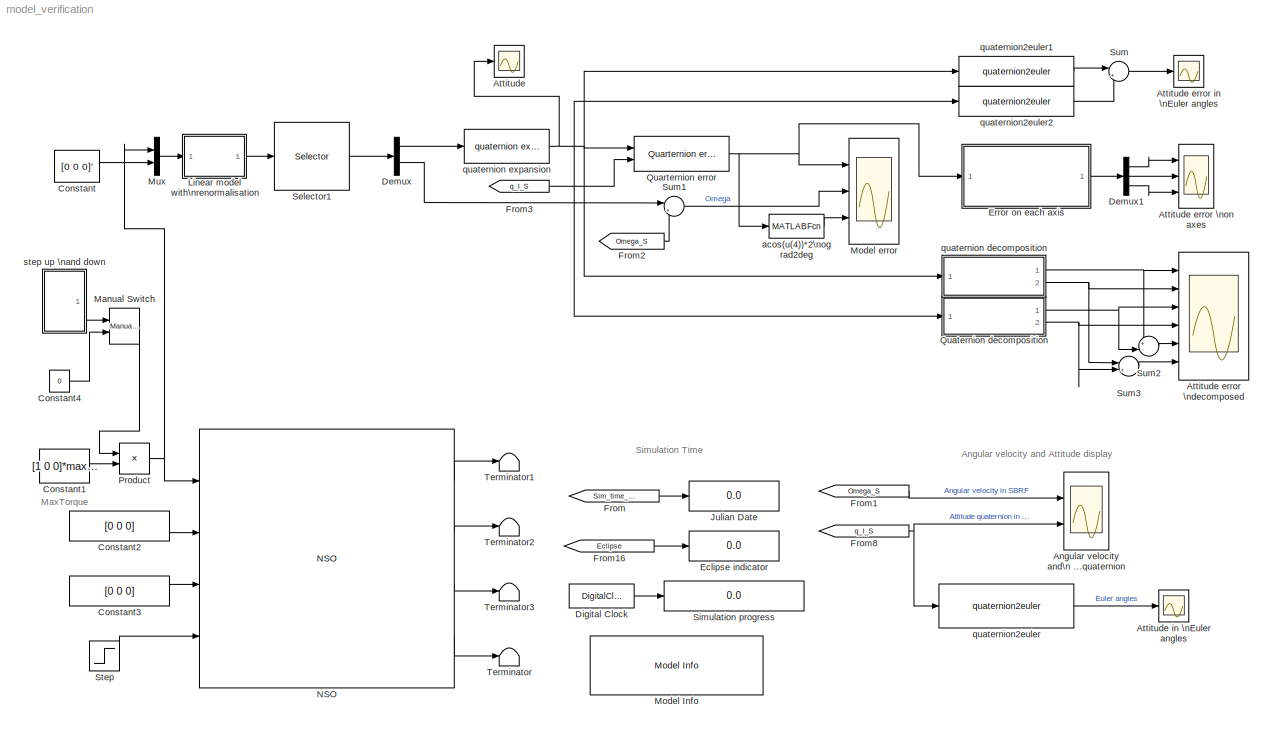
MODEL model_verification
KIND model
CONFIG InitFcn = model_veri
CONFIG PreLoadFcn = \n
CONFIG StartFcn = \n\n
BLOCK [Scope] Angular velocity and\n attitude quaternion
  DataFormat = StructureWithTime
  Floating = off
  LimitDataPoints = off
  NumInputPorts = 2
  Ports = [2]
  SampleTime = 0
  YMax = 0~1
  YMin = -1.25e-008~0
  ZoomMode = yonly
BLOCK [Scope] Attitude
  DataFormat = StructureWithTime
  Floating = off
  LimitDataPoints = off
  NumInputPorts = 1
  Ports = [1]
  SampleTime = 0
  SaveName = ScopeData2
  YMax = 3.5
  YMin = -3.5
BLOCK [Scope] Attitude error \ndecomposed
  DataFormat = StructureWithTime
  Floating = off
  LimitDataPoints = off
  NumInputPorts = 6
  Ports = [6]
  SampleTime = 0
  SaveName = ScopeData4
  YMax = 0.1~0.00125~1~0.00125~0.01~2.5e-009
  YMin = -1~0~-1~0~-0.001~-5e-010
  ZoomMode = yonly
BLOCK [Scope] Attitude error \non axes
  DataFormat = StructureWithTime
  Floating = off
  LimitDataPoints = off
  NumInputPorts = 3
  Ports = [3]
  SampleTime = 0
  SaveName = ScopeData5
  YMax = 3.5~5~5
  YMin = -3.5~-5~-5
  ZoomMode = yonly
BLOCK [Scope] Attitude error in \nEuler angles
  DataFormat = StructureWithTime
  Floating = off
  LimitDataPoints = off
  NumInputPorts = 1
  Ports = [1]
  SampleTime = 0
  SaveName = ScopeData3
  YMax = 3.5
  YMin = -3.5
BLOCK [Scope] Attitude in \nEuler angles
  DataFormat = StructureWithTime
  Floating = off
  LimitDataPoints = off
  NumInputPorts = 1
  Ports = [1]
  SampleTime = 0
  SaveName = ScopeData1
  YMax = 3.5
  YMin = -3.5
BLOCK [Constant] Constant
  Value = [0 0 0]'
BLOCK [Constant] Constant1
  Value = [1 0 0]*maxTorque
BLOCK [Constant] Constant2
  Value = [0 0 0]
BLOCK [Constant] Constant3
  Value = [0 0 0]
BLOCK [Constant] Constant4
  Value = 0
BLOCK [Demux] Demux
  DisplayOption = bar
  Outputs = 2
  Ports = [1, 2]
BLOCK [Demux] Demux1
  DisplayOption = bar
  Outputs = 3
  Ports = [1, 3]
BLOCK [DigitalClock] Digital Clock
BLOCK [Display] Eclipse indicator
  Decimation = 1
  Lockdown = off
  Ports = [1]
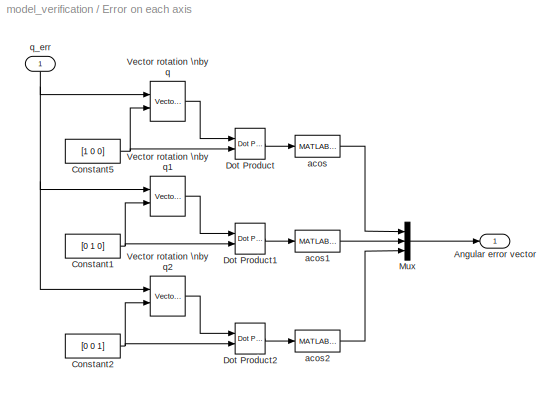
BLOCK [SubSystem] Error on each axis
  MaskHideContents = off
  MinAlgLoopOccurrences = off
  Ports = [1, 1]
  RTWSystemCode = Auto
  TreatAsAtomicUnit = off
BLOCK [Outport] Error on each axis/Angular error vector
  BusOutputAsStruct = off
  IconDisplay = Port number
BLOCK [Constant] Error on each axis/Constant1
  Value = [0 1 0]
BLOCK [Constant] Error on each axis/Constant2
  Value = [0 0 1]
BLOCK [Constant] Error on each axis/Constant5
  Value = [1 0 0]
BLOCK [Reference] Error on each axis/Dot Product  REF=simulink/Math\nOperations/Dot Product
  DoSatur = off
  InputSameDT = on
  LockScale = off
  OutDataType = sfix(16)
  OutScaling = 2^-10
  OutputDataTypeScalingMode = Inherit via internal rule
  Ports = [2, 1]
  RndMeth = Floor
  SourceBlock = simulink/Math\nOperations/Dot Product
  SourceType = Dot Product
BLOCK [Reference] Error on each axis/Dot Product1  REF=simulink/Math\nOperations/Dot Product
  DoSatur = off
  InputSameDT = on
  LockScale = off
  OutDataType = sfix(16)
  OutScaling = 2^-10
  OutputDataTypeScalingMode = Inherit via internal rule
  Ports = [2, 1]
  RndMeth = Floor
  SourceBlock = simulink/Math\nOperations/Dot Product
  SourceType = Dot Product
BLOCK [Reference] Error on each axis/Dot Product2  REF=simulink/Math\nOperations/Dot Product
  DoSatur = off
  InputSameDT = on
  LockScale = off
  OutDataType = sfix(16)
  OutScaling = 2^-10
  OutputDataTypeScalingMode = Inherit via internal rule
  Ports = [2, 1]
  RndMeth = Floor
  SourceBlock = simulink/Math\nOperations/Dot Product
  SourceType = Dot Product
BLOCK [Mux] Error on each axis/Mux
  DisplayOption = bar
  Inputs = 3
  Ports = [3, 1]
BLOCK [Reference] Error on each axis/Vector rotation \nby q  REF=components_lib/Math utilities/Quaternion operations/Vector rotation by q  (lib defined in mdl_419550584dda)
  Ports = [2, 1]
  ShowPortLabels = on
  SourceBlock = components_lib/Math utilities/Quaternion operations/Vector rotation by q
  SourceType = SubSystem
BLOCK [Reference] Error on each axis/Vector rotation \nby q1  REF=components_lib/Math utilities/Quaternion operations/Vector rotation by q  (lib defined in mdl_419550584dda)
  Ports = [2, 1]
  ShowPortLabels = on
  SourceBlock = components_lib/Math utilities/Quaternion operations/Vector rotation by q
  SourceType = SubSystem
BLOCK [Reference] Error on each axis/Vector rotation \nby q2  REF=components_lib/Math utilities/Quaternion operations/Vector rotation by q  (lib defined in mdl_419550584dda)
  Ports = [2, 1]
  ShowPortLabels = on
  SourceBlock = components_lib/Math utilities/Quaternion operations/Vector rotation by q
  SourceType = SubSystem
BLOCK [MATLABFcn] Error on each axis/acos
  MATLABFcn = real(acos(u))/pi*180
BLOCK [MATLABFcn] Error on each axis/acos1
  MATLABFcn = real(acos(u))/pi*180
BLOCK [MATLABFcn] Error on each axis/acos2
  MATLABFcn = real(acos(u))/pi*180
BLOCK [Inport] Error on each axis/q_err
  IconDisplay = Port number
BLOCK [From] From
  CloseFcn = tagdialog Close
  GotoTag = Sim_time_JD
BLOCK [From] From1
  CloseFcn = tagdialog Close
  GotoTag = Omega_S
BLOCK [From] From16
  CloseFcn = tagdialog Close
  GotoTag = Eclipse
BLOCK [From] From2
  CloseFcn = tagdialog Close
  GotoTag = Omega_S
BLOCK [From] From3
  CloseFcn = tagdialog Close
  GotoTag = q_I_S
BLOCK [From] From8
  CloseFcn = tagdialog Close
  GotoTag = q_I_S
BLOCK [Display] Julian Date
  Decimation = 1
  Lockdown = off
  Ports = [1]
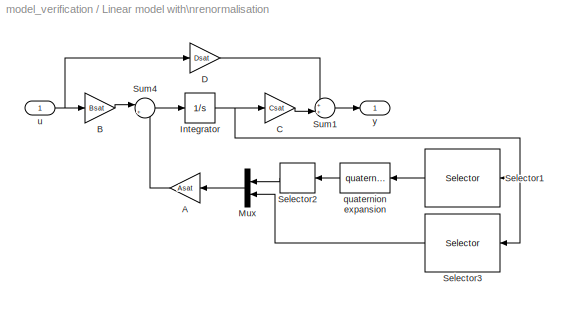
BLOCK [SubSystem] Linear model with\nrenormalisation
  MaskCallbackString = |||||
  MaskDescription = This is a general linear system of a satellite described by \nx_dot = Ax + Bu\ny = Cx + Du\nwhere x = [q_1:3 w L] and u=[N_mt N_mw].\nHowever, in this model the quaternion is expanded and renormalised in every timestep.
  MaskEnableString = on,on,on,on,on,on
  MaskHideContents = off
  MaskIconFrame = on
  MaskIconOpaque = on
  MaskIconRotate = none
  MaskIconUnits = autoscale
  MaskPromptString = A matrix|B matrix|C matrix|D matrix|Initial attitude|Initial angular rate
  MaskStyleString = edit,edit,edit,edit,edit,edit
  MaskTabNameString = ,,,,,
  MaskToolTipString = on,on,on,on,on,on
  MaskTunableValueString = on,on,on,on,on,on
  MaskType = Linear satellite system
  MaskValueString = A_model_ver|B_model_ver|C_model_ver|D_model_ver|[0 0 0 1]|[0.1 0.1 0.1]*0
  MaskVarAliasString = ,,,,,
  MaskVariables = Asat=@1;Bsat=@2;Csat=@3;Dsat=@4;q_init=@5;w_init=@6;
  MaskVisibilityString = on,on,on,on,on,on
  MinAlgLoopOccurrences = off
  Ports = [1, 1]
  RTWSystemCode = Auto
  TreatAsAtomicUnit = off
BLOCK [Gain] Linear model with\nrenormalisation/A
  Gain = Asat
  Multiplication = Matrix(K*u)
  OutDataTypeMode = Inherit via internal rule
  ParameterDataTypeMode = Inherit via internal rule
  SaturateOnIntegerOverflow = off
BLOCK [Gain] Linear model with\nrenormalisation/B
  Gain = Bsat
  Multiplication = Matrix(K*u)
  OutDataTypeMode = Inherit via internal rule
  ParameterDataTypeMode = Inherit via internal rule
  SaturateOnIntegerOverflow = off
BLOCK [Gain] Linear model with\nrenormalisation/C
  Gain = Csat
  Multiplication = Matrix(K*u)
  OutDataTypeMode = Inherit via internal rule
  ParameterDataTypeMode = Inherit via internal rule
  SaturateOnIntegerOverflow = off
BLOCK [Gain] Linear model with\nrenormalisation/D
  Gain = Dsat
  Multiplication = Matrix(K*u)
  OutDataTypeMode = Inherit via internal rule
  ParameterDataTypeMode = Inherit via internal rule
  SaturateOnIntegerOverflow = off
BLOCK [Integrator] Linear model with\nrenormalisation/Integrator
  IgnoreLimit = off
  InitialCondition = [q_init(1:3) w_init 0 0 0]
  Ports = [1, 1]
BLOCK [Mux] Linear model with\nrenormalisation/Mux
  DisplayOption = bar
  Inputs = 2
  Ports = [2, 1]
BLOCK [Selector] Linear model with\nrenormalisation/Selector1
  Elements = [1 2 3]
  InputPortWidth = 9
  Ports = [1, 1]
BLOCK [Selector] Linear model with\nrenormalisation/Selector2
  Elements = [1 2 3]
  InputPortWidth = 4
  Ports = [1, 1]
BLOCK [Selector] Linear model with\nrenormalisation/Selector3
  Elements = [4 5 6 7 8 9]
  InputPortWidth = 9
  Ports = [1, 1]
BLOCK [Sum] Linear model with\nrenormalisation/Sum1
  IconShape = round
  InputSameDT = off
  Inputs = ++|
  OutDataTypeMode = Inherit via internal rule
  Ports = [2, 1]
  SaturateOnIntegerOverflow = off
BLOCK [Sum] Linear model with\nrenormalisation/Sum4
  IconShape = round
  InputSameDT = off
  Inputs = |++
  OutDataTypeMode = Inherit via internal rule
  Ports = [2, 1]
  SaturateOnIntegerOverflow = off
BLOCK [Reference] Linear model with\nrenormalisation/quaternion expansion  REF=components_lib/Math utilities/Quaternion operations/quaternion expansion  (lib defined in mdl_419550584dda)
  Ports = [1, 1]
  ShowPortLabels = on
  SourceBlock = components_lib/Math utilities/Quaternion operations/quaternion expansion
  SourceType = SubSystem
BLOCK [Inport] Linear model with\nrenormalisation/u
  IconDisplay = Port number
BLOCK [Outport] Linear model with\nrenormalisation/y
  BusOutputAsStruct = off
  IconDisplay = Port number
BLOCK [Reference] Manual Switch  REF=simulink/Signal\nRouting/Manual Switch
  Ports = [2, 1]
  ShowPortLabels = on
  SourceBlock = simulink/Signal\nRouting/Manual Switch
  SourceType = Manual Switch
  action = 0
  sw = 1
BLOCK [Reference] Model Info  REF=simulink/Model-Wide\nUtilities/Model Info
  BlockCM = None
  DisplayStringWithTags = Usefull Julian dates:\nsun to eclipse : 2452315.560376\n32 sec. before : 2452315.56\neclipse to sun : 2452315.513363
  Frame = on
  HorizontalTextAlignment = Left
  InitialBlockCM = None
  LeftAlignmentValue = 0.02
  MaskDisplayString = Usefull Julian dates:\\nsun to eclipse : 2452315.560376\\n32 sec. before : 2452315.56\\neclipse to sun : 2452315.513363
  Ports = []
  ShowPortLabels = on
  SourceBlock = simulink/Model-Wide\nUtilities/Model Info
  SourceBlockDiagram = model_verification
  SourceType = CMBlock
  TagMaxNumber = 20
BLOCK [Scope] Model error
  DataFormat = StructureWithTime
  Floating = off
  LimitDataPoints = off
  NumInputPorts = 3
  Ports = [3]
  SampleTime = 0
  SaveName = model_veri_err
  SaveToWorkspace = on
  TimeRange = 8.824896694214885
  YMax = 1~2e-016~0.4935266347021195
  YMin = -1~-1e-016~0
  ZoomMode = xonly
BLOCK [Mux] Mux
  DisplayOption = bar
  Inputs = 2
  Ports = [2, 1]
BLOCK [Reference] NSO  REF=components_lib/NSO  (lib defined in mdl_419550584dda)
  Cd = 2
  Description = AAUSAT-II Model
  Dim = [0.1 0.1 0.3]
  Ports = [4, 4]
  ShowPortLabels = on
  SourceBlock = components_lib/NSO
  Tag = AAUSAT-II Model
  alb_emu_enabled = off
  enable_dist = off
  enable_sensor_emulation = off
  inertia_c = [25 25 5]/1e3
  inertia_d = [42.3 42.3 28.4]/1e3
  init_jd = 2452315.56
  mass_sc = 3
  q_init_s_i = [0 0 0 1]
  q_s_c = [0 0 0 1]
  r_com_s = [0.05 0.05 0.15]
  r_com_s_deployed = [0.05 0.05 0.125]
  rho = 9.25e-13
  sat_temp_start = 0
  w_init_s = [0.1 0.1 0.1]*0
BLOCK [Product] Product
  InputSameDT = off
  OutDataTypeMode = Inherit via internal rule
  Ports = [2, 1]
  SaturateOnIntegerOverflow = off
BLOCK [Reference] Quarternion error  REF=components_lib/Math utilities/Quaternion operations/Quarternion error  (lib defined in mdl_419550584dda)
  Ports = [2, 1]
  ShowPortLabels = on
  SourceBlock = components_lib/Math utilities/Quaternion operations/Quarternion error
  SourceType = SubSystem
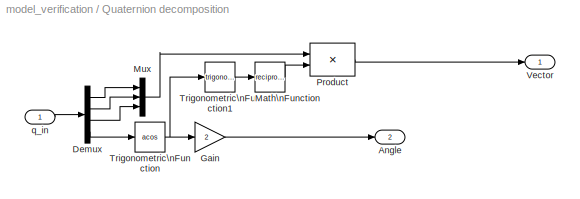
BLOCK [SubSystem] Quaternion decomposition
  MaskHideContents = off
  MinAlgLoopOccurrences = off
  Ports = [1, 2]
  RTWSystemCode = Auto
  TreatAsAtomicUnit = off
BLOCK [Outport] Quaternion decomposition/Angle
  BusOutputAsStruct = off
  IconDisplay = Port number
  Port = 2
BLOCK [Demux] Quaternion decomposition/Demux
  Ports = [1, 4]
BLOCK [Gain] Quaternion decomposition/Gain
  Gain = 2
BLOCK [Math] Quaternion decomposition/Math\nFunction
  Operator = reciprocal
  Ports = [1, 1]
BLOCK [Mux] Quaternion decomposition/Mux
  DisplayOption = bar
  Inputs = 3
  Ports = [3, 1]
BLOCK [Product] Quaternion decomposition/Product
  InputSameDT = off
  Ports = [2, 1]
  RndMeth = Floor
BLOCK [Trigonometry] Quaternion decomposition/Trigonometric\nFunction
  Operator = acos
  Ports = [1, 1]
BLOCK [Trigonometry] Quaternion decomposition/Trigonometric\nFunction1
  Ports = [1, 1]
BLOCK [Outport] Quaternion decomposition/Vector
  BusOutputAsStruct = off
  IconDisplay = Port number
BLOCK [Inport] Quaternion decomposition/q_in
  IconDisplay = Port number
BLOCK [Selector] Selector1
  Elements = [1 2 3 4 5 6]
  InputPortWidth = 9
  Ports = [1, 1]
BLOCK [Display] Simulation progress
  Decimation = 1
  Format = long
  Lockdown = off
  Ports = [1]
BLOCK [Step] Step
  SampleTime = 0
  Time = 0
BLOCK [Sum] Sum
  IconShape = round
  InputSameDT = off
  Inputs = |+-
  OutDataTypeMode = Inherit via internal rule
  Ports = [2, 1]
  SaturateOnIntegerOverflow = off
BLOCK [Sum] Sum1
  IconShape = round
  InputSameDT = off
  Inputs = |+-
  OutDataTypeMode = Inherit via internal rule
  Ports = [2, 1]
  SaturateOnIntegerOverflow = off
BLOCK [Sum] Sum2
  IconShape = round
  InputSameDT = off
  Inputs = +-|
  OutDataTypeMode = Inherit via internal rule
  Ports = [2, 1]
  SaturateOnIntegerOverflow = off
BLOCK [Sum] Sum3
  IconShape = round
  InputSameDT = off
  Inputs = |+-
  OutDataTypeMode = Inherit via internal rule
  Ports = [2, 1]
  SaturateOnIntegerOverflow = off
BLOCK [Terminator] Terminator
BLOCK [Terminator] Terminator1
BLOCK [Terminator] Terminator2
BLOCK [Terminator] Terminator3
BLOCK [MATLABFcn] acos(u(4))*2\nog rad2deg
  MATLABFcn = real(acos(u(4))*2)/pi*180
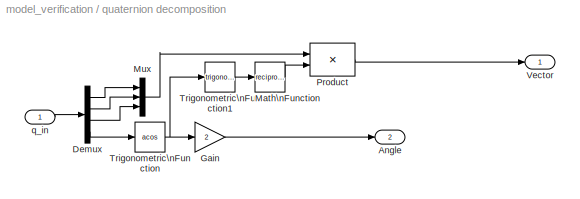
BLOCK [SubSystem] quaternion decomposition
  MaskHideContents = off
  MinAlgLoopOccurrences = off
  Ports = [1, 2]
  RTWSystemCode = Auto
  TreatAsAtomicUnit = off
BLOCK [Outport] quaternion decomposition/Angle
  BusOutputAsStruct = off
  IconDisplay = Port number
  Port = 2
BLOCK [Demux] quaternion decomposition/Demux
  Ports = [1, 4]
BLOCK [Gain] quaternion decomposition/Gain
  Gain = 2
BLOCK [Math] quaternion decomposition/Math\nFunction
  Operator = reciprocal
  Ports = [1, 1]
BLOCK [Mux] quaternion decomposition/Mux
  DisplayOption = bar
  Inputs = 3
  Ports = [3, 1]
BLOCK [Product] quaternion decomposition/Product
  InputSameDT = off
  Ports = [2, 1]
  RndMeth = Floor
BLOCK [Trigonometry] quaternion decomposition/Trigonometric\nFunction
  Operator = acos
  Ports = [1, 1]
BLOCK [Trigonometry] quaternion decomposition/Trigonometric\nFunction1
  Ports = [1, 1]
BLOCK [Outport] quaternion decomposition/Vector
  BusOutputAsStruct = off
  IconDisplay = Port number
BLOCK [Inport] quaternion decomposition/q_in
  IconDisplay = Port number
BLOCK [Reference] quaternion expansion  REF=components_lib/Math utilities/Quaternion operations/quaternion expansion  (lib defined in mdl_419550584dda)
  Ports = [1, 1]
  ShowPortLabels = on
  SourceBlock = components_lib/Math utilities/Quaternion operations/quaternion expansion
  SourceType = SubSystem
BLOCK [Reference] quaternion2euler  REF=components_lib/Math utilities/Quaternion operations/quaternion2euler  (lib defined in mdl_419550584dda)
  Ports = [1, 1]
  ShowPortLabels = on
  SourceBlock = components_lib/Math utilities/Quaternion operations/quaternion2euler
  SourceType = SubSystem
BLOCK [Reference] quaternion2euler1  REF=components_lib/Math utilities/Quaternion operations/quaternion2euler  (lib defined in mdl_419550584dda)
  Ports = [1, 1]
  ShowPortLabels = on
  SourceBlock = components_lib/Math utilities/Quaternion operations/quaternion2euler
  SourceType = SubSystem
BLOCK [Reference] quaternion2euler2  REF=components_lib/Math utilities/Quaternion operations/quaternion2euler  (lib defined in mdl_419550584dda)
  Ports = [1, 1]
  ShowPortLabels = on
  SourceBlock = components_lib/Math utilities/Quaternion operations/quaternion2euler
  SourceType = SubSystem
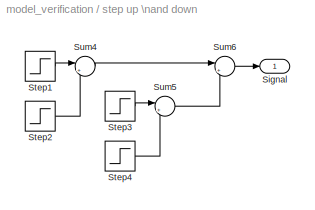
BLOCK [SubSystem] step up \nand down
  MaskCallbackString = |||
  MaskDescription = Gives first a positive pulse of size 1 and then a negative pulse of size 1.
  MaskEnableString = on,on,on,on
  MaskHideContents = off
  MaskIconFrame = on
  MaskIconOpaque = on
  MaskIconRotate = none
  MaskIconUnits = autoscale
  MaskPromptString = Pulse up start time|Pulse up end time|Pulse down start time|Pulse down end time
  MaskStyleString = edit,edit,edit,edit
  MaskTabNameString = ,,,
  MaskToolTipString = on,on,on,on
  MaskTunableValueString = on,on,on,on
  MaskValueString = 300|320|1300|1320
  MaskVarAliasString = ,,,
  MaskVariables = up_start_time=@1;up_end_time=@2;down_start_time=@3;down_end_time=@4;
  MaskVisibilityString = on,on,on,on
  MinAlgLoopOccurrences = off
  Ports = [0, 1]
  RTWSystemCode = Auto
  TreatAsAtomicUnit = off
BLOCK [Outport] step up \nand down/Signal
  BusOutputAsStruct = off
  IconDisplay = Port number
BLOCK [Step] step up \nand down/Step1
  SampleTime = 0
  Time = up_start_time
BLOCK [Step] step up \nand down/Step2
  SampleTime = 0
  Time = up_end_time
BLOCK [Step] step up \nand down/Step3
  After = -1
  SampleTime = 0
  Time = down_start_time
BLOCK [Step] step up \nand down/Step4
  After = -1
  SampleTime = 0
  Time = down_end_time
BLOCK [Sum] step up \nand down/Sum4
  IconShape = round
  InputSameDT = off
  Inputs = |+-
  OutDataTypeMode = Inherit via internal rule
  Ports = [2, 1]
  SaturateOnIntegerOverflow = off
BLOCK [Sum] step up \nand down/Sum5
  IconShape = round
  InputSameDT = off
  Inputs = |+-
  OutDataTypeMode = Inherit via internal rule
  Ports = [2, 1]
  SaturateOnIntegerOverflow = off
BLOCK [Sum] step up \nand down/Sum6
  IconShape = round
  InputSameDT = off
  Inputs = |++
  OutDataTypeMode = Inherit via internal rule
  Ports = [2, 1]
  SaturateOnIntegerOverflow = off
ANNOTATION (root): Angular velocity and Attitude display
ANNOTATION (root): MaxTorque
ANNOTATION (root): Simulation Time
LINE Constant1:1 -> Product:2
LINE Constant2:1 -> NSO:2
LINE Constant3:1 -> NSO:3
LINE Constant4:1 -> Manual Switch:2
LINE Constant:1 -> Mux:2
LINE Demux1:1 -> Attitude error \non axes:1
LINE Demux1:2 -> Attitude error \non axes:2
LINE Demux1:3 -> Attitude error \non axes:3
LINE Demux:1 -> quaternion expansion:1
LINE Demux:2 -> Sum1:1
LINE Digital Clock:1 -> Simulation progress:1
NET Error on each axis/Constant1:1 -> Error on each axis/Dot Product1:2, Error on each axis/Vector rotation \nby q1:2
NET Error on each axis/Constant2:1 -> Error on each axis/Dot Product2:2, Error on each axis/Vector rotation \nby q2:2
NET Error on each axis/Constant5:1 -> Error on each axis/Dot Product:2, Error on each axis/Vector rotation \nby q:2
LINE Error on each axis/Dot Product1:1 -> Error on each axis/acos1:1
LINE Error on each axis/Dot Product2:1 -> Error on each axis/acos2:1
LINE Error on each axis/Dot Product:1 -> Error on each axis/acos:1
LINE Error on each axis/Mux:1 -> Error on each axis/Angular error vector:1
LINE Error on each axis/Vector rotation \nby q1:1 -> Error on each axis/Dot Product1:1
LINE Error on each axis/Vector rotation \nby q2:1 -> Error on each axis/Dot Product2:1
LINE Error on each axis/Vector rotation \nby q:1 -> Error on each axis/Dot Product:1
LINE Error on each axis/acos1:1 -> Error on each axis/Mux:2
LINE Error on each axis/acos2:1 -> Error on each axis/Mux:3
LINE Error on each axis/acos:1 -> Error on each axis/Mux:1
NET Error on each axis/q_err:1 -> Error on each axis/Vector rotation \nby q1:1, Error on each axis/Vector rotation \nby q2:1, Error on each axis/Vector rotation \nby q:1
LINE Error on each axis:1 -> Demux1:1
LINE From16:1 -> Eclipse indicator:1
LINE From1:1 -> Angular velocity and\n attitude quaternion:1
LINE From2:1 -> Sum1:2
NET From3:1 -> Quarternion error:2, Quaternion decomposition:1, quaternion2euler2:1
NET From8:1 -> Angular velocity and\n attitude quaternion:2, quaternion2euler:1
LINE From:1 -> Julian Date:1
LINE Linear model with\nrenormalisation/A:1 -> Linear model with\nrenormalisation/Sum4:2
LINE Linear model with\nrenormalisation/B:1 -> Linear model with\nrenormalisation/Sum4:1
LINE Linear model with\nrenormalisation/C:1 -> Linear model with\nrenormalisation/Sum1:2
LINE Linear model with\nrenormalisation/D:1 -> Linear model with\nrenormalisation/Sum1:1
NET Linear model with\nrenormalisation/Integrator:1 -> Linear model with\nrenormalisation/C:1, Linear model with\nrenormalisation/Selector1:1, Linear model with\nrenormalisation/Selector3:1
LINE Linear model with\nrenormalisation/Mux:1 -> Linear model with\nrenormalisation/A:1
LINE Linear model with\nrenormalisation/Selector1:1 -> Linear model with\nrenormalisation/quaternion expansion:1
LINE Linear model with\nrenormalisation/Selector2:1 -> Linear model with\nrenormalisation/Mux:1
LINE Linear model with\nrenormalisation/Selector3:1 -> Linear model with\nrenormalisation/Mux:2
LINE Linear model with\nrenormalisation/Sum1:1 -> Linear model with\nrenormalisation/y:1
LINE Linear model with\nrenormalisation/Sum4:1 -> Linear model with\nrenormalisation/Integrator:1
LINE Linear model with\nrenormalisation/quaternion expansion:1 -> Linear model with\nrenormalisation/Selector2:1
NET Linear model with\nrenormalisation/u:1 -> Linear model with\nrenormalisation/B:1, Linear model with\nrenormalisation/D:1
LINE Linear model with\nrenormalisation:1 -> Selector1:1
LINE Manual Switch:1 -> Product:1
LINE Mux:1 -> Linear model with\nrenormalisation:1
LINE NSO:1 -> Terminator1:1
LINE NSO:2 -> Terminator2:1
LINE NSO:3 -> Terminator3:1
LINE NSO:4 -> Terminator:1
NET Product:1 -> Mux:1, NSO:1
NET Quarternion error:1 -> Error on each axis:1, Model error:1, acos(u(4))*2\nog rad2deg:1
LINE Quaternion decomposition/Demux:1 -> Quaternion decomposition/Mux:1
LINE Quaternion decomposition/Demux:2 -> Quaternion decomposition/Mux:2
LINE Quaternion decomposition/Demux:3 -> Quaternion decomposition/Mux:3
LINE Quaternion decomposition/Demux:4 -> Quaternion decomposition/Trigonometric\nFunction:1
LINE Quaternion decomposition/Gain:1 -> Quaternion decomposition/Angle:1
LINE Quaternion decomposition/Math\nFunction:1 -> Quaternion decomposition/Product:2
LINE Quaternion decomposition/Mux:1 -> Quaternion decomposition/Product:1
LINE Quaternion decomposition/Product:1 -> Quaternion decomposition/Vector:1
LINE Quaternion decomposition/Trigonometric\nFunction1:1 -> Quaternion decomposition/Math\nFunction:1
NET Quaternion decomposition/Trigonometric\nFunction:1 -> Quaternion decomposition/Gain:1, Quaternion decomposition/Trigonometric\nFunction1:1
LINE Quaternion decomposition/q_in:1 -> Quaternion decomposition/Demux:1
NET Quaternion decomposition:1 -> Attitude error \ndecomposed:3, Sum2:2
NET Quaternion decomposition:2 -> Attitude error \ndecomposed:4, Sum3:2
LINE Selector1:1 -> Demux:1
LINE Step:1 -> NSO:4
LINE Sum1:1 -> Model error:2
LINE Sum2:1 -> Attitude error \ndecomposed:5
LINE Sum3:1 -> Attitude error \ndecomposed:6
LINE Sum:1 -> Attitude error in \nEuler angles:1
LINE acos(u(4))*2\nog rad2deg:1 -> Model error:3
LINE quaternion decomposition/Demux:1 -> quaternion decomposition/Mux:1
LINE quaternion decomposition/Demux:2 -> quaternion decomposition/Mux:2
LINE quaternion decomposition/Demux:3 -> quaternion decomposition/Mux:3
LINE quaternion decomposition/Demux:4 -> quaternion decomposition/Trigonometric\nFunction:1
LINE quaternion decomposition/Gain:1 -> quaternion decomposition/Angle:1
LINE quaternion decomposition/Math\nFunction:1 -> quaternion decomposition/Product:2
LINE quaternion decomposition/Mux:1 -> quaternion decomposition/Product:1
LINE quaternion decomposition/Product:1 -> quaternion decomposition/Vector:1
LINE quaternion decomposition/Trigonometric\nFunction1:1 -> quaternion decomposition/Math\nFunction:1
NET quaternion decomposition/Trigonometric\nFunction:1 -> quaternion decomposition/Gain:1, quaternion decomposition/Trigonometric\nFunction1:1
LINE quaternion decomposition/q_in:1 -> quaternion decomposition/Demux:1
NET quaternion decomposition:1 -> Attitude error \ndecomposed:1, Sum2:1
NET quaternion decomposition:2 -> Attitude error \ndecomposed:2, Sum3:1
NET quaternion expansion:1 -> Attitude:1, Quarternion error:1, quaternion decomposition:1, quaternion2euler1:1
LINE quaternion2euler1:1 -> Sum:1
LINE quaternion2euler2:1 -> Sum:2
LINE quaternion2euler:1 -> Attitude in \nEuler angles:1
LINE step up \nand down/Step1:1 -> step up \nand down/Sum4:1
LINE step up \nand down/Step2:1 -> step up \nand down/Sum4:2
LINE step up \nand down/Step3:1 -> step up \nand down/Sum5:1
LINE step up \nand down/Step4:1 -> step up \nand down/Sum5:2
LINE step up \nand down/Sum4:1 -> step up \nand down/Sum6:1
LINE step up \nand down/Sum5:1 -> step up \nand down/Sum6:2
LINE step up \nand down/Sum6:1 -> step up \nand down/Signal:1
LINE step up \nand down:1 -> Manual Switch:1
note: NET lines group one-source signal fan-out (src -> all destinations, sorted); 1:1 wires keep LINE
